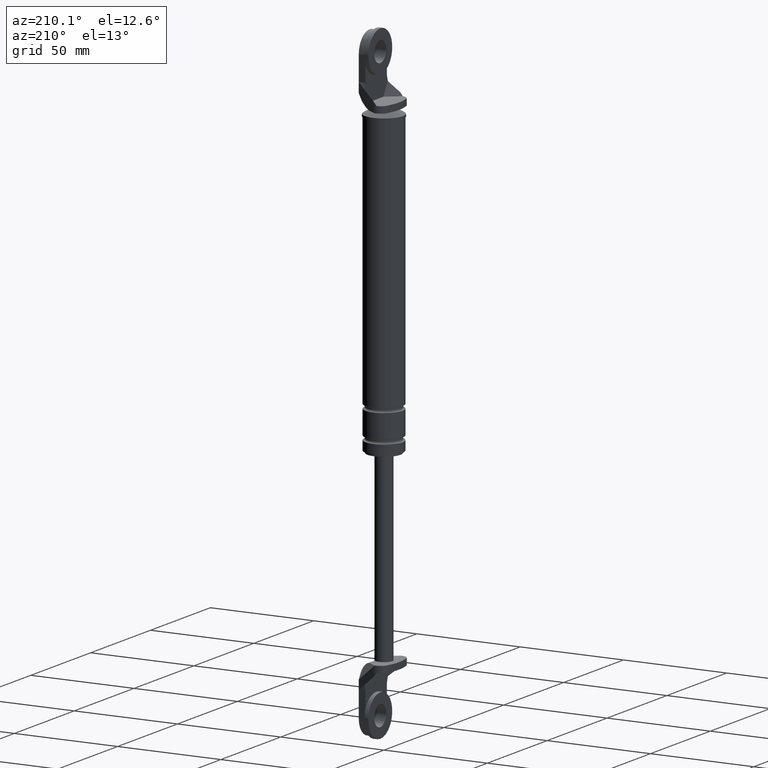
[diagram: clean part render]
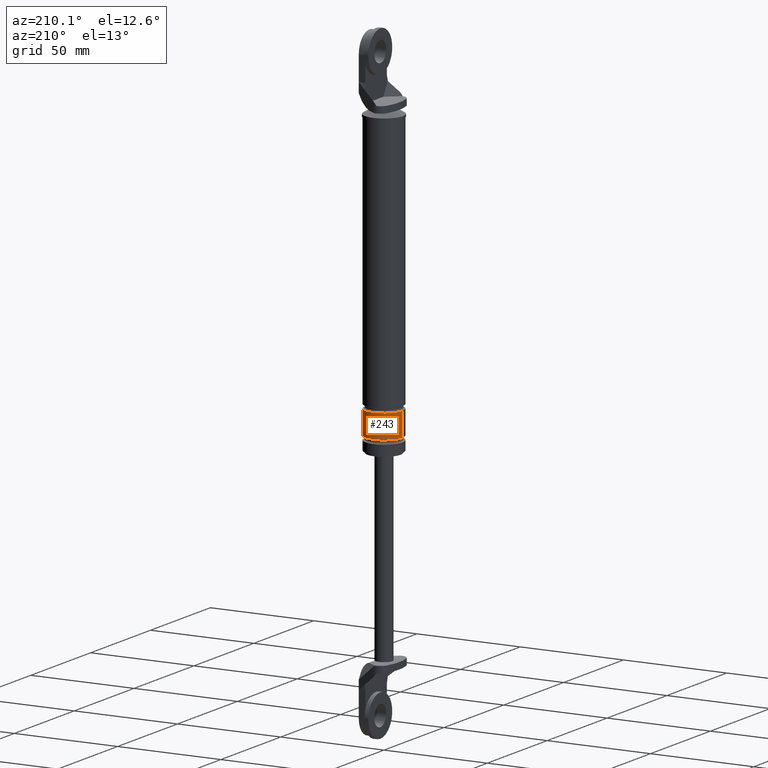
[diagram: same view with one face highlighted and labeled with its STEP entity id]
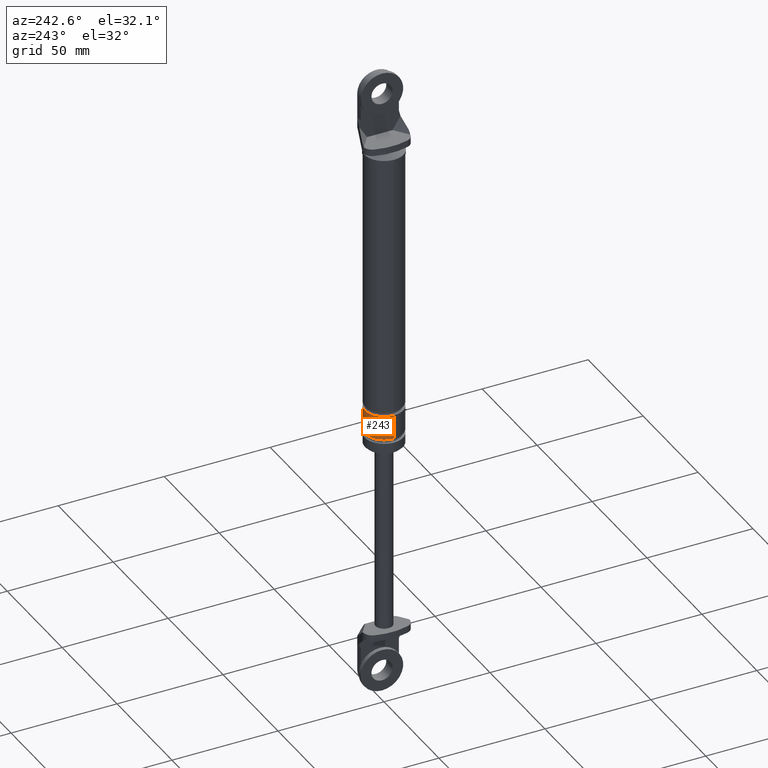
[diagram: same view with one face highlighted and labeled with its STEP entity id]
A machine part, auxiliary view. The second image highlights one B-rep face of the part: STEP entity #243.
A second angle (auxiliary view) of the same face is appended — the face is thin or edge-on in the first view.
In plain terms, the highlighted cylindrical surface (edge-blend (fillet) strip) has radius 9 mm, axis along (0, 0, 1).
Its self-contained STEP definition (entity closure, byte-faithful):
#243=ADVANCED_FACE('',(#685),#684,.T.);
#684=CYLINDRICAL_SURFACE('',#1402,9.00000000000E+000);
#685=FACE_OUTER_BOUND('',#1403,.T.);
#1399=CARTESIAN_POINT('',(0.00000000000E+000,3.58204186421E-014,0.00000000000E+000));
#1400=DIRECTION('',(-0.00000000000E+000,-0.00000000000E+000,1.00000000000E+000));
#1401=DIRECTION('',(1.00000000000E+000,0.00000000000E+000,0.00000000000E+000));
#1402=AXIS2_PLACEMENT_3D('',#1399,#1400,#1401);
#1403=EDGE_LOOP('',(#1950,#1951,#1952,#1953));
#1950=ORIENTED_EDGE('',*,*,#2261,.T.);
#1951=ORIENTED_EDGE('',*,*,#2262,.F.);
#1952=ORIENTED_EDGE('',*,*,#2263,.F.);
#1953=ORIENTED_EDGE('',*,*,#2264,.T.);
#2261=EDGE_CURVE('',#3046,#3047,#3048,.T.);
#2262=EDGE_CURVE('',#3054,#3047,#3055,.T.);
#2263=EDGE_CURVE('',#3061,#3054,#3062,.T.);
#2264=EDGE_CURVE('',#3061,#3046,#3068,.T.);
#3046=VERTEX_POINT('',#4103);
#3047=VERTEX_POINT('',#4104);
#3048=CIRCLE('',#4108,9.00000000000E+000);
#3054=VERTEX_POINT('',#4109);
#3055=(BOUNDED_CURVE() B_SPLINE_CURVE(1,(#4110,#4111),.UNSPECIFIED.,.F.,.F.) B_SPLINE_CURVE_WITH_KNOTS((2,2),(8.33333343261E-002,9.16666667006E-001),.UNSPECIFIED.) CURVE() GEOMETRIC_REPRESENTATION_ITEM() RATIONAL_B_SPLINE_CURVE((1.00000000000E+000,1.00000000000E+000)) REPRESENTATION_ITEM('') );
#3061=VERTEX_POINT('',#4112);
#3062=CIRCLE('',#4116,9.00000000000E+000);
#3068=(BOUNDED_CURVE() B_SPLINE_CURVE(1,(#4117,#4118),.UNSPECIFIED.,.F.,.F.) B_SPLINE_CURVE_WITH_KNOTS((2,2),(8.33333333333E-002,9.16666666667E-001),.UNSPECIFIED.) CURVE() GEOMETRIC_REPRESENTATION_ITEM() RATIONAL_B_SPLINE_CURVE((7.50000000000E-001,7.50000000000E-001)) REPRESENTATION_ITEM('') );
#4103=CARTESIAN_POINT('',(-9.00000000000E+000,3.58204186421E-014,-4.00000150000E+001));
#4104=CARTESIAN_POINT('',(9.00000000000E+000,3.61192557345E-014,-4.00000150000E+001));
#4105=CARTESIAN_POINT('',(0.00000000000E+000,3.58204186421E-014,-4.00000150000E+001));
#4106=DIRECTION('',(-0.00000000000E+000,0.00000000000E+000,-1.00000000000E+000));
#4107=DIRECTION('',(-1.00000000000E+000,-1.22460635382E-016,0.00000000000E+000));
#4108=AXIS2_PLACEMENT_3D('',#4105,#4106,#4107);
#4109=CARTESIAN_POINT('',(9.00000000000E+000,3.61192557345E-014,-5.15000150000E+001));
#4110=CARTESIAN_POINT('',(9.00000000000E+000,3.58204186421E-014,-5.15000149863E+001));
#4111=CARTESIAN_POINT('',(9.00000000000E+000,3.58204186421E-014,-4.00000149953E+001));
#4112=CARTESIAN_POINT('',(-9.00000000000E+000,3.58204186421E-014,-5.15000150000E+001));
#4113=CARTESIAN_POINT('',(0.00000000000E+000,3.58204186421E-014,-5.15000150000E+001));
#4114=DIRECTION('',(-0.00000000000E+000,0.00000000000E+000,-1.00000000000E+000));
#4115=DIRECTION('',(-1.00000000000E+000,-1.22460635382E-016,0.00000000000E+000));
#4116=AXIS2_PLACEMENT_3D('',#4113,#4114,#4115);
#4117=CARTESIAN_POINT('',(-9.00000000000E+000,3.52310773148E-014,-5.15000150000E+001));
#4118=CARTESIAN_POINT('',(-9.00000000000E+000,3.52310773148E-014,-4.00000150000E+001));